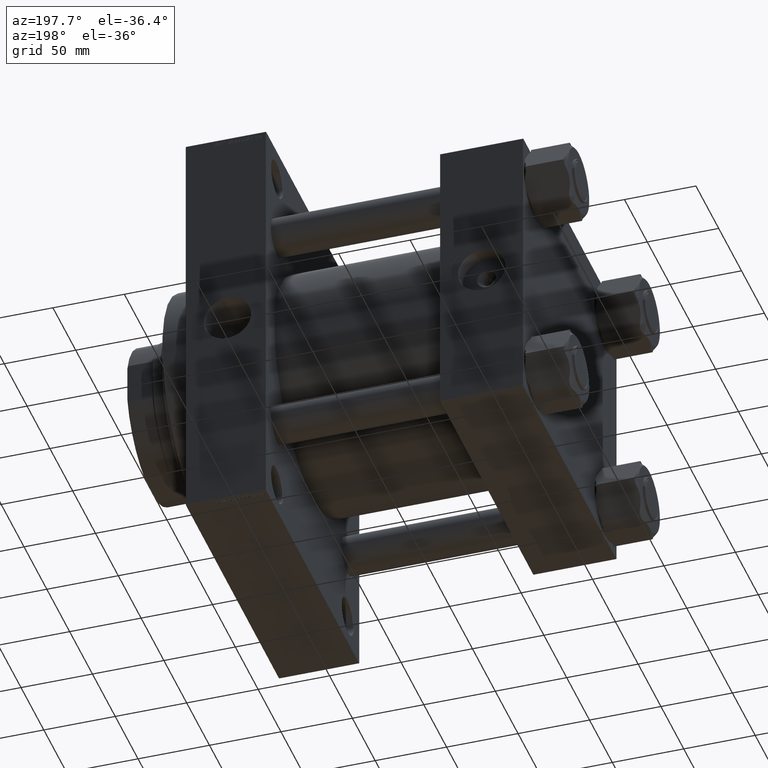
[diagram: clean part render]
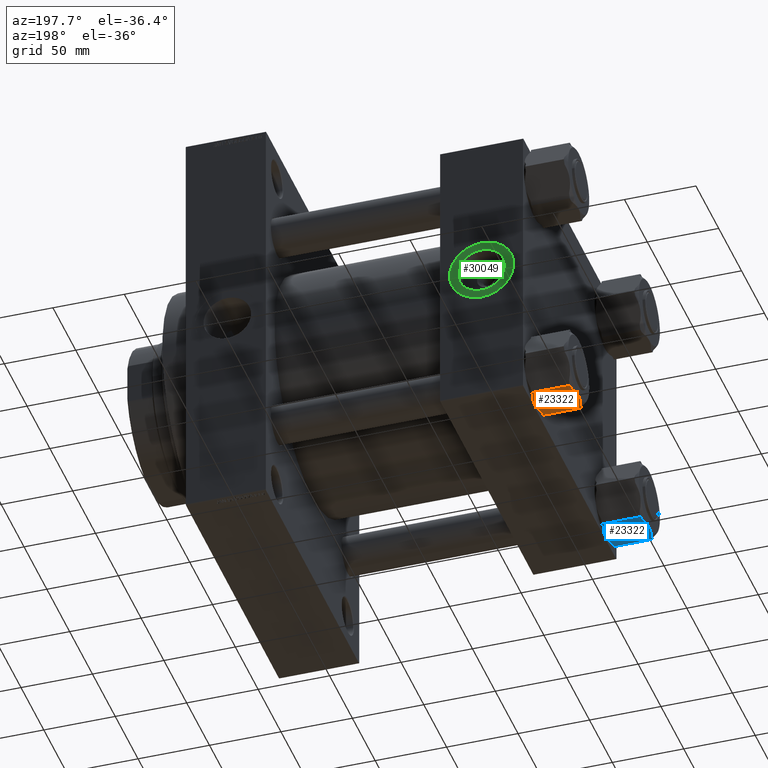
[diagram: same view with three faces highlighted in distinct colors, each labeled with its STEP entity id]
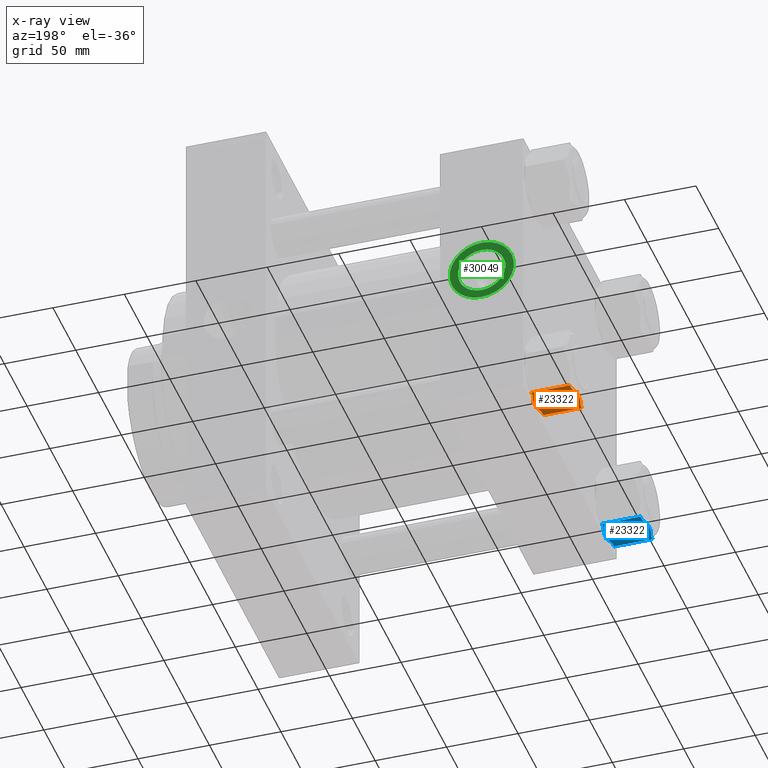
[diagram: x-ray of the same camera — body ghosted, the three highlighted faces saturated]
A machine part, auxiliary view with three faces highlighted in distinct colors.
The next image is the same camera in x-ray (body ghosted, the three faces saturated) — at least one of them is partly hidden behind the body in this view.
Their STEP definitions:

[orange] entity #23322 — the highlighted planar face has unit normal (0, 0, 1).
#771 = VECTOR ( 'NONE', #1139, 1000.000000000000000 ) ;
#896 = DIRECTION ( 'NONE',  ( -0.000000000000000000, -0.000000000000000000, 1.000000000000000000 ) ) ;
#1139 = DIRECTION ( 'NONE',  ( -1.000000000000000000, -1.303323422972807304E-16, 0.000000000000000000 ) ) ;
#1891 = EDGE_CURVE ( 'NONE', #43623, #46353, #31085, .T. ) ;
#2526 = CARTESIAN_POINT ( 'NONE',  ( 3.004629197474320035E-15, -23.05359624874177271, 0.000000000000000000 ) ) ;
#3108 = CARTESIAN_POINT ( 'NONE',  ( -0.4218342054646766481, -23.05359624874176561, -31.00000000000002132 ) ) ;
#3400 = CARTESIAN_POINT ( 'NONE',  ( 9.024432966208934204, -23.05359624874176205, -29.30712901002065962 ) ) ;
#3799 = CARTESIAN_POINT ( 'NONE',  ( -13.31000000000000405, -23.05359624874176205, -28.99999999999999645 ) ) ;
#4191 = CARTESIAN_POINT ( 'NONE',  ( 3.004629197474320035E-15, -23.05359624874177271, -31.00000000000000000 ) ) ;
#4194 = CARTESIAN_POINT ( 'NONE',  ( -13.31000000000000405, -23.05359624874176205, -2.000000000000001776 ) ) ;
#4224 = DIRECTION ( 'NONE',  ( -0.000000000000000000, -0.000000000000000000, 1.000000000000000000 ) ) ;
#4533 = ORIENTED_EDGE ( 'NONE', *, *, #46502, .T. ) ;
#5010 = VERTEX_POINT ( 'NONE', #5973 ) ;
#5324 = CARTESIAN_POINT ( 'NONE',  ( 13.31000000000000938, -23.05359624874175850, -28.99999999999999645 ) ) ;
#5973 = CARTESIAN_POINT ( 'NONE',  ( 9.808893158505085808, -23.05359624874176205, -2.000000000000000000 ) ) ;
#6615 = ORIENTED_EDGE ( 'NONE', *, *, #39692, .F. ) ;
#6637 = EDGE_CURVE ( 'NONE', #15421, #36551, #47461, .T. ) ;
#6645 = DIRECTION ( 'NONE',  ( 1.000000000000000000, 1.303323422972807304E-16, -0.000000000000000000 ) ) ;
#6682 = VERTEX_POINT ( 'NONE', #5324 ) ;
#6840 = ORIENTED_EDGE ( 'NONE', *, *, #25076, .F. ) ;
#7502 = CARTESIAN_POINT ( 'NONE',  ( 3.004629197474320035E-15, -23.05359624874177271, -31.00000000000000000 ) ) ;
#7843 = CARTESIAN_POINT ( 'NONE',  ( -13.31000000000000405, -23.05359624874176205, -31.00000000000000000 ) ) ;
#8148 = DIRECTION ( 'NONE',  ( -1.000000000000000000, -1.303323422972807304E-16, 0.000000000000000000 ) ) ;
#8737 = EDGE_LOOP ( 'NONE', ( #29335, #4533, #6615, #26264, #34849, #30559, #34949, #12476, #6840, #24176 ) ) ;
#9344 = VECTOR ( 'NONE', #4224, 1000.000000000000000 ) ;
#10238 = CARTESIAN_POINT ( 'NONE',  ( 0.4218342054646910810, -23.05359624874176205, 1.211341817868374915E-14 ) ) ;
#10480 = CARTESIAN_POINT ( 'NONE',  ( 4.192182187841031471, -23.05359624874176205, -0.3644771254818050532 ) ) ;
#11360 = CARTESIAN_POINT ( 'NONE',  ( 3.350210548520277332, -23.05359624874175495, -30.81266480856790935 ) ) ;
#11468 = LINE ( 'NONE', #7843, #9344 ) ;
#11770 = CARTESIAN_POINT ( 'NONE',  ( 13.31000000000000938, -23.05359624874175850, -31.00000000000000000 ) ) ;
#12476 = ORIENTED_EDGE ( 'NONE', *, *, #1891, .F. ) ;
#13184 = DIRECTION ( 'NONE',  ( 1.000000000000000000, 1.303323422972807304E-16, -0.000000000000000000 ) ) ;
#13202 = AXIS2_PLACEMENT_3D ( 'NONE', #11770, #26515, #8148 ) ;
#14447 = CARTESIAN_POINT ( 'NONE',  ( -6.641506094493685453, -23.05359624874176561, -30.11551404775777030 ) ) ;
#14675 = CARTESIAN_POINT ( 'NONE',  ( -3.366747807636256251, -23.05359624874176916, -30.77026726310296212 ) ) ;
#15421 = VERTEX_POINT ( 'NONE', #4194 ) ;
#16998 = CARTESIAN_POINT ( 'NONE',  ( 6.641506094493679235, -23.05359624874176205, -0.8844859522422295894 ) ) ;
#17354 = CARTESIAN_POINT ( 'NONE',  ( -9.024432966208918216, -23.05359624874176561, -1.692870989979335050 ) ) ;
#17715 = CARTESIAN_POINT ( 'NONE',  ( 3.366747807636262912, -23.05359624874175850, -0.2297327368970329131 ) ) ;
#17828 = CARTESIAN_POINT ( 'NONE',  ( -2.113373616412098865, -23.05359624874176561, -30.90705919660667078 ) ) ;
#18055 = CARTESIAN_POINT ( 'NONE',  ( 9.808893158505096466, -23.05359624874176205, -28.99999999999999645 ) ) ;
#18130 = CARTESIAN_POINT ( 'NONE',  ( 5.801497649255038525, -23.05359624874175850, -30.29464328683343410 ) ) ;
#18540 = CARTESIAN_POINT ( 'NONE',  ( -1.693046291327859887, -23.05359624874175495, -30.94177411052105953 ) ) ;
#18858 = B_SPLINE_CURVE_WITH_KNOTS ( 'NONE', 3,
 ( #25629, #3400, #47371, #36744, #18130, #11360, #33359, #7502 ),
 .UNSPECIFIED., .F., .F.,
 ( 4, 2, 2, 4 ),
 ( 0.03704433557245610797, 0.03955680769153650106, 0.04206927981061689414, 0.04709422404877768031 ),
 .UNSPECIFIED. ) ;
#18944 = CARTESIAN_POINT ( 'NONE',  ( 3.004629197474320035E-15, -23.05359624874177271, 0.000000000000000000 ) ) ;
#19950 = VERTEX_POINT ( 'NONE', #18944 ) ;
#19965 = VERTEX_POINT ( 'NONE', #21606 ) ;
#20199 = LINE ( 'NONE', #23129, #24483 ) ;
#20316 = CARTESIAN_POINT ( 'NONE',  ( -9.808893158505089360, -23.05359624874176205, -28.99999999999999645 ) ) ;
#21229 = CARTESIAN_POINT ( 'NONE',  ( -9.808893158505089360, -23.05359624874176205, -28.99999999999999645 ) ) ;
#21578 = CARTESIAN_POINT ( 'NONE',  ( 9.808893158505085808, -23.05359624874176205, -2.000000000000000000 ) ) ;
#21598 = CARTESIAN_POINT ( 'NONE',  ( 13.31000000000000938, -23.05359624874175850, -2.000000000000001776 ) ) ;
#21606 = CARTESIAN_POINT ( 'NONE',  ( 13.31000000000000938, -23.05359624874175850, -2.000000000000001776 ) ) ;
#21934 = CARTESIAN_POINT ( 'NONE',  ( -8.238500401260319350, -23.05359624874176205, -29.61483447804336322 ) ) ;
#23062 = EDGE_CURVE ( 'NONE', #46353, #15421, #11468, .T. ) ;
#23129 = CARTESIAN_POINT ( 'NONE',  ( 13.31000000000000938, -23.05359624874175850, -28.99999999999999645 ) ) ;
#23322 = ADVANCED_FACE ( 'NONE', ( #33995 ), #44868, .F. ) ;
#23595 = LINE ( 'NONE', #41713, #26099 ) ;
#23875 = EDGE_CURVE ( 'NONE', #36551, #19950, #32338, .T. ) ;
#24176 = ORIENTED_EDGE ( 'NONE', *, *, #38401, .F. ) ;
#24483 = VECTOR ( 'NONE', #37867, 1000.000000000000000 ) ;
#24980 = CARTESIAN_POINT ( 'NONE',  ( 1.693046291327868325, -23.05359624874175850, -0.05822588947892674838 ) ) ;
#25076 = EDGE_CURVE ( 'NONE', #35341, #43623, #40466, .T. ) ;
#25220 = CARTESIAN_POINT ( 'NONE',  ( 8.238500401260312245, -23.05359624874175495, -1.385165521956630785 ) ) ;
#25629 = CARTESIAN_POINT ( 'NONE',  ( 9.808893158505096466, -23.05359624874176205, -28.99999999999999645 ) ) ;
#25897 = VECTOR ( 'NONE', #13184, 1000.000000000000000 ) ;
#26099 = VECTOR ( 'NONE', #896, 1000.000000000000000 ) ;
#26264 = ORIENTED_EDGE ( 'NONE', *, *, #38998, .F. ) ;
#26515 = DIRECTION ( 'NONE',  ( -1.303323422972807304E-16, 1.000000000000000000, 0.000000000000000000 ) ) ;
#27538 = CARTESIAN_POINT ( 'NONE',  ( 3.004629197474320035E-15, -23.05359624874177271, 0.000000000000000000 ) ) ;
#28865 = CARTESIAN_POINT ( 'NONE',  ( 0.8470567002417638269, -23.05359624874175140, -0.01168982920648786727 ) ) ;
#29335 = ORIENTED_EDGE ( 'NONE', *, *, #44256, .F. ) ;
#30559 = ORIENTED_EDGE ( 'NONE', *, *, #6637, .F. ) ;
#31085 = LINE ( 'NONE', #34235, #771 ) ;
#31149 = CARTESIAN_POINT ( 'NONE',  ( -1.690332161126401278, -23.05359624874176205, 1.223793202193012972E-14 ) ) ;
#31182 = CARTESIAN_POINT ( 'NONE',  ( -9.808893158505080478, -23.05359624874176205, -2.000000000000000000 ) ) ;
#31804 = CARTESIAN_POINT ( 'NONE',  ( 13.31000000000000938, -23.05359624874175850, -2.000000000000001776 ) ) ;
#32338 = B_SPLINE_CURVE_WITH_KNOTS ( 'NONE', 3,
 ( #38406, #17354, #45875, #46122, #45631, #38878, #31149, #27538 ),
 .UNSPECIFIED., .F., .F.,
 ( 4, 2, 2, 4 ),
 ( 0.03704433557245612185, 0.03955680769153651494, 0.04206927981061690802, 0.04709422404877768725 ),
 .UNSPECIFIED. ) ;
#33060 = CARTESIAN_POINT ( 'NONE',  ( -4.192182187841029695, -23.05359624874176561, -30.63552287451819822 ) ) ;
#33359 = CARTESIAN_POINT ( 'NONE',  ( 1.690332161126417709, -23.05359624874175495, -31.00000000000001421 ) ) ;
#33995 = FACE_OUTER_BOUND ( 'NONE', #8737, .T. ) ;
#34235 = CARTESIAN_POINT ( 'NONE',  ( 13.31000000000000938, -23.05359624874175850, -28.99999999999999645 ) ) ;
#34849 = ORIENTED_EDGE ( 'NONE', *, *, #23875, .F. ) ;
#34949 = ORIENTED_EDGE ( 'NONE', *, *, #23062, .F. ) ;
#35341 = VERTEX_POINT ( 'NONE', #4191 ) ;
#35979 = CARTESIAN_POINT ( 'NONE',  ( 3.004629197474320035E-15, -23.05359624874177271, -31.00000000000000000 ) ) ;
#36331 = CARTESIAN_POINT ( 'NONE',  ( 2.113373616412109968, -23.05359624874176205, -0.09294080339332899676 ) ) ;
#36551 = VERTEX_POINT ( 'NONE', #31182 ) ;
#36744 = CARTESIAN_POINT ( 'NONE',  ( 6.612214801278809340, -23.05359624874175140, -30.08273205772793091 ) ) ;
#37867 = DIRECTION ( 'NONE',  ( -1.000000000000000000, -1.303323422972807304E-16, 0.000000000000000000 ) ) ;
#38401 = EDGE_CURVE ( 'NONE', #46343, #35341, #18858, .T. ) ;
#38406 = CARTESIAN_POINT ( 'NONE',  ( -9.808893158505080478, -23.05359624874176205, -2.000000000000000000 ) ) ;
#38878 = CARTESIAN_POINT ( 'NONE',  ( -3.350210548520257792, -23.05359624874175850, -0.1873351914320835754 ) ) ;
#38998 = EDGE_CURVE ( 'NONE', #19950, #5010, #43599, .T. ) ;
#39503 = VECTOR ( 'NONE', #6645, 1000.000000000000000 ) ;
#39692 = EDGE_CURVE ( 'NONE', #5010, #19965, #47250, .T. ) ;
#40466 = B_SPLINE_CURVE_WITH_KNOTS ( 'NONE', 3,
 ( #35979, #3108, #47554, #18540, #17828, #14675, #33060, #14447, #21934, #21229 ),
 .UNSPECIFIED., .F., .F.,
 ( 4, 2, 2, 2, 4 ),
 ( 0.04709422404877768031, 0.04834823400549316530, 0.04960224396220865029, 0.05211026387563962026, 0.05712630370250156020 ),
 .UNSPECIFIED. ) ;
#41713 = CARTESIAN_POINT ( 'NONE',  ( 13.31000000000000938, -23.05359624874175850, -31.00000000000000000 ) ) ;
#43599 = B_SPLINE_CURVE_WITH_KNOTS ( 'NONE', 3,
 ( #2526, #10238, #28865, #24980, #36331, #17715, #10480, #16998, #25220, #21578 ),
 .UNSPECIFIED., .F., .F.,
 ( 4, 2, 2, 2, 4 ),
 ( 0.04709422404877768725, 0.04834823400549317224, 0.04960224396220865029, 0.05211026387563961332, 0.05712630370250153244 ),
 .UNSPECIFIED. ) ;
#43623 = VERTEX_POINT ( 'NONE', #20316 ) ;
#44256 = EDGE_CURVE ( 'NONE', #6682, #46343, #20199, .T. ) ;
#44868 = PLANE ( 'NONE',  #13202 ) ;
#45631 = CARTESIAN_POINT ( 'NONE',  ( -5.801497649255014544, -23.05359624874176205, -0.7053567131665616774 ) ) ;
#45875 = CARTESIAN_POINT ( 'NONE',  ( -8.222377524857041209, -23.05359624874176205, -1.410427084452070101 ) ) ;
#46122 = CARTESIAN_POINT ( 'NONE',  ( -6.612214801278793352, -23.05359624874175495, -0.9172679422720545483 ) ) ;
#46343 = VERTEX_POINT ( 'NONE', #18055 ) ;
#46353 = VERTEX_POINT ( 'NONE', #3799 ) ;
#46502 = EDGE_CURVE ( 'NONE', #6682, #19965, #23595, .T. ) ;
#47250 = LINE ( 'NONE', #31804, #25897 ) ;
#47371 = CARTESIAN_POINT ( 'NONE',  ( 8.222377524857060749, -23.05359624874175495, -29.58957291554792590 ) ) ;
#47461 = LINE ( 'NONE', #21598, #39503 ) ;
#47554 = CARTESIAN_POINT ( 'NONE',  ( -0.8470567002417531688, -23.05359624874176205, -30.98831017079351113 ) ) ;

[blue] entity #23322 — the highlighted planar face has unit normal (0, 0, 1).
#771 = VECTOR ( 'NONE', #1139, 1000.000000000000000 ) ;
#896 = DIRECTION ( 'NONE',  ( -0.000000000000000000, -0.000000000000000000, 1.000000000000000000 ) ) ;
#1139 = DIRECTION ( 'NONE',  ( -1.000000000000000000, -1.303323422972807304E-16, 0.000000000000000000 ) ) ;
#1891 = EDGE_CURVE ( 'NONE', #43623, #46353, #31085, .T. ) ;
#2526 = CARTESIAN_POINT ( 'NONE',  ( 3.004629197474320035E-15, -23.05359624874177271, 0.000000000000000000 ) ) ;
#3108 = CARTESIAN_POINT ( 'NONE',  ( -0.4218342054646766481, -23.05359624874176561, -31.00000000000002132 ) ) ;
#3400 = CARTESIAN_POINT ( 'NONE',  ( 9.024432966208934204, -23.05359624874176205, -29.30712901002065962 ) ) ;
#3799 = CARTESIAN_POINT ( 'NONE',  ( -13.31000000000000405, -23.05359624874176205, -28.99999999999999645 ) ) ;
#4191 = CARTESIAN_POINT ( 'NONE',  ( 3.004629197474320035E-15, -23.05359624874177271, -31.00000000000000000 ) ) ;
#4194 = CARTESIAN_POINT ( 'NONE',  ( -13.31000000000000405, -23.05359624874176205, -2.000000000000001776 ) ) ;
#4224 = DIRECTION ( 'NONE',  ( -0.000000000000000000, -0.000000000000000000, 1.000000000000000000 ) ) ;
#4533 = ORIENTED_EDGE ( 'NONE', *, *, #46502, .T. ) ;
#5010 = VERTEX_POINT ( 'NONE', #5973 ) ;
#5324 = CARTESIAN_POINT ( 'NONE',  ( 13.31000000000000938, -23.05359624874175850, -28.99999999999999645 ) ) ;
#5973 = CARTESIAN_POINT ( 'NONE',  ( 9.808893158505085808, -23.05359624874176205, -2.000000000000000000 ) ) ;
#6615 = ORIENTED_EDGE ( 'NONE', *, *, #39692, .F. ) ;
#6637 = EDGE_CURVE ( 'NONE', #15421, #36551, #47461, .T. ) ;
#6645 = DIRECTION ( 'NONE',  ( 1.000000000000000000, 1.303323422972807304E-16, -0.000000000000000000 ) ) ;
#6682 = VERTEX_POINT ( 'NONE', #5324 ) ;
#6840 = ORIENTED_EDGE ( 'NONE', *, *, #25076, .F. ) ;
#7502 = CARTESIAN_POINT ( 'NONE',  ( 3.004629197474320035E-15, -23.05359624874177271, -31.00000000000000000 ) ) ;
#7843 = CARTESIAN_POINT ( 'NONE',  ( -13.31000000000000405, -23.05359624874176205, -31.00000000000000000 ) ) ;
#8148 = DIRECTION ( 'NONE',  ( -1.000000000000000000, -1.303323422972807304E-16, 0.000000000000000000 ) ) ;
#8737 = EDGE_LOOP ( 'NONE', ( #29335, #4533, #6615, #26264, #34849, #30559, #34949, #12476, #6840, #24176 ) ) ;
#9344 = VECTOR ( 'NONE', #4224, 1000.000000000000000 ) ;
#10238 = CARTESIAN_POINT ( 'NONE',  ( 0.4218342054646910810, -23.05359624874176205, 1.211341817868374915E-14 ) ) ;
#10480 = CARTESIAN_POINT ( 'NONE',  ( 4.192182187841031471, -23.05359624874176205, -0.3644771254818050532 ) ) ;
#11360 = CARTESIAN_POINT ( 'NONE',  ( 3.350210548520277332, -23.05359624874175495, -30.81266480856790935 ) ) ;
#11468 = LINE ( 'NONE', #7843, #9344 ) ;
#11770 = CARTESIAN_POINT ( 'NONE',  ( 13.31000000000000938, -23.05359624874175850, -31.00000000000000000 ) ) ;
#12476 = ORIENTED_EDGE ( 'NONE', *, *, #1891, .F. ) ;
#13184 = DIRECTION ( 'NONE',  ( 1.000000000000000000, 1.303323422972807304E-16, -0.000000000000000000 ) ) ;
#13202 = AXIS2_PLACEMENT_3D ( 'NONE', #11770, #26515, #8148 ) ;
#14447 = CARTESIAN_POINT ( 'NONE',  ( -6.641506094493685453, -23.05359624874176561, -30.11551404775777030 ) ) ;
#14675 = CARTESIAN_POINT ( 'NONE',  ( -3.366747807636256251, -23.05359624874176916, -30.77026726310296212 ) ) ;
#15421 = VERTEX_POINT ( 'NONE', #4194 ) ;
#16998 = CARTESIAN_POINT ( 'NONE',  ( 6.641506094493679235, -23.05359624874176205, -0.8844859522422295894 ) ) ;
#17354 = CARTESIAN_POINT ( 'NONE',  ( -9.024432966208918216, -23.05359624874176561, -1.692870989979335050 ) ) ;
#17715 = CARTESIAN_POINT ( 'NONE',  ( 3.366747807636262912, -23.05359624874175850, -0.2297327368970329131 ) ) ;
#17828 = CARTESIAN_POINT ( 'NONE',  ( -2.113373616412098865, -23.05359624874176561, -30.90705919660667078 ) ) ;
#18055 = CARTESIAN_POINT ( 'NONE',  ( 9.808893158505096466, -23.05359624874176205, -28.99999999999999645 ) ) ;
#18130 = CARTESIAN_POINT ( 'NONE',  ( 5.801497649255038525, -23.05359624874175850, -30.29464328683343410 ) ) ;
#18540 = CARTESIAN_POINT ( 'NONE',  ( -1.693046291327859887, -23.05359624874175495, -30.94177411052105953 ) ) ;
#18858 = B_SPLINE_CURVE_WITH_KNOTS ( 'NONE', 3,
 ( #25629, #3400, #47371, #36744, #18130, #11360, #33359, #7502 ),
 .UNSPECIFIED., .F., .F.,
 ( 4, 2, 2, 4 ),
 ( 0.03704433557245610797, 0.03955680769153650106, 0.04206927981061689414, 0.04709422404877768031 ),
 .UNSPECIFIED. ) ;
#18944 = CARTESIAN_POINT ( 'NONE',  ( 3.004629197474320035E-15, -23.05359624874177271, 0.000000000000000000 ) ) ;
#19950 = VERTEX_POINT ( 'NONE', #18944 ) ;
#19965 = VERTEX_POINT ( 'NONE', #21606 ) ;
#20199 = LINE ( 'NONE', #23129, #24483 ) ;
#20316 = CARTESIAN_POINT ( 'NONE',  ( -9.808893158505089360, -23.05359624874176205, -28.99999999999999645 ) ) ;
#21229 = CARTESIAN_POINT ( 'NONE',  ( -9.808893158505089360, -23.05359624874176205, -28.99999999999999645 ) ) ;
#21578 = CARTESIAN_POINT ( 'NONE',  ( 9.808893158505085808, -23.05359624874176205, -2.000000000000000000 ) ) ;
#21598 = CARTESIAN_POINT ( 'NONE',  ( 13.31000000000000938, -23.05359624874175850, -2.000000000000001776 ) ) ;
#21606 = CARTESIAN_POINT ( 'NONE',  ( 13.31000000000000938, -23.05359624874175850, -2.000000000000001776 ) ) ;
#21934 = CARTESIAN_POINT ( 'NONE',  ( -8.238500401260319350, -23.05359624874176205, -29.61483447804336322 ) ) ;
#23062 = EDGE_CURVE ( 'NONE', #46353, #15421, #11468, .T. ) ;
#23129 = CARTESIAN_POINT ( 'NONE',  ( 13.31000000000000938, -23.05359624874175850, -28.99999999999999645 ) ) ;
#23322 = ADVANCED_FACE ( 'NONE', ( #33995 ), #44868, .F. ) ;
#23595 = LINE ( 'NONE', #41713, #26099 ) ;
#23875 = EDGE_CURVE ( 'NONE', #36551, #19950, #32338, .T. ) ;
#24176 = ORIENTED_EDGE ( 'NONE', *, *, #38401, .F. ) ;
#24483 = VECTOR ( 'NONE', #37867, 1000.000000000000000 ) ;
#24980 = CARTESIAN_POINT ( 'NONE',  ( 1.693046291327868325, -23.05359624874175850, -0.05822588947892674838 ) ) ;
#25076 = EDGE_CURVE ( 'NONE', #35341, #43623, #40466, .T. ) ;
#25220 = CARTESIAN_POINT ( 'NONE',  ( 8.238500401260312245, -23.05359624874175495, -1.385165521956630785 ) ) ;
#25629 = CARTESIAN_POINT ( 'NONE',  ( 9.808893158505096466, -23.05359624874176205, -28.99999999999999645 ) ) ;
#25897 = VECTOR ( 'NONE', #13184, 1000.000000000000000 ) ;
#26099 = VECTOR ( 'NONE', #896, 1000.000000000000000 ) ;
#26264 = ORIENTED_EDGE ( 'NONE', *, *, #38998, .F. ) ;
#26515 = DIRECTION ( 'NONE',  ( -1.303323422972807304E-16, 1.000000000000000000, 0.000000000000000000 ) ) ;
#27538 = CARTESIAN_POINT ( 'NONE',  ( 3.004629197474320035E-15, -23.05359624874177271, 0.000000000000000000 ) ) ;
#28865 = CARTESIAN_POINT ( 'NONE',  ( 0.8470567002417638269, -23.05359624874175140, -0.01168982920648786727 ) ) ;
#29335 = ORIENTED_EDGE ( 'NONE', *, *, #44256, .F. ) ;
#30559 = ORIENTED_EDGE ( 'NONE', *, *, #6637, .F. ) ;
#31085 = LINE ( 'NONE', #34235, #771 ) ;
#31149 = CARTESIAN_POINT ( 'NONE',  ( -1.690332161126401278, -23.05359624874176205, 1.223793202193012972E-14 ) ) ;
#31182 = CARTESIAN_POINT ( 'NONE',  ( -9.808893158505080478, -23.05359624874176205, -2.000000000000000000 ) ) ;
#31804 = CARTESIAN_POINT ( 'NONE',  ( 13.31000000000000938, -23.05359624874175850, -2.000000000000001776 ) ) ;
#32338 = B_SPLINE_CURVE_WITH_KNOTS ( 'NONE', 3,
 ( #38406, #17354, #45875, #46122, #45631, #38878, #31149, #27538 ),
 .UNSPECIFIED., .F., .F.,
 ( 4, 2, 2, 4 ),
 ( 0.03704433557245612185, 0.03955680769153651494, 0.04206927981061690802, 0.04709422404877768725 ),
 .UNSPECIFIED. ) ;
#33060 = CARTESIAN_POINT ( 'NONE',  ( -4.192182187841029695, -23.05359624874176561, -30.63552287451819822 ) ) ;
#33359 = CARTESIAN_POINT ( 'NONE',  ( 1.690332161126417709, -23.05359624874175495, -31.00000000000001421 ) ) ;
#33995 = FACE_OUTER_BOUND ( 'NONE', #8737, .T. ) ;
#34235 = CARTESIAN_POINT ( 'NONE',  ( 13.31000000000000938, -23.05359624874175850, -28.99999999999999645 ) ) ;
#34849 = ORIENTED_EDGE ( 'NONE', *, *, #23875, .F. ) ;
#34949 = ORIENTED_EDGE ( 'NONE', *, *, #23062, .F. ) ;
#35341 = VERTEX_POINT ( 'NONE', #4191 ) ;
#35979 = CARTESIAN_POINT ( 'NONE',  ( 3.004629197474320035E-15, -23.05359624874177271, -31.00000000000000000 ) ) ;
#36331 = CARTESIAN_POINT ( 'NONE',  ( 2.113373616412109968, -23.05359624874176205, -0.09294080339332899676 ) ) ;
#36551 = VERTEX_POINT ( 'NONE', #31182 ) ;
#36744 = CARTESIAN_POINT ( 'NONE',  ( 6.612214801278809340, -23.05359624874175140, -30.08273205772793091 ) ) ;
#37867 = DIRECTION ( 'NONE',  ( -1.000000000000000000, -1.303323422972807304E-16, 0.000000000000000000 ) ) ;
#38401 = EDGE_CURVE ( 'NONE', #46343, #35341, #18858, .T. ) ;
#38406 = CARTESIAN_POINT ( 'NONE',  ( -9.808893158505080478, -23.05359624874176205, -2.000000000000000000 ) ) ;
#38878 = CARTESIAN_POINT ( 'NONE',  ( -3.350210548520257792, -23.05359624874175850, -0.1873351914320835754 ) ) ;
#38998 = EDGE_CURVE ( 'NONE', #19950, #5010, #43599, .T. ) ;
#39503 = VECTOR ( 'NONE', #6645, 1000.000000000000000 ) ;
#39692 = EDGE_CURVE ( 'NONE', #5010, #19965, #47250, .T. ) ;
#40466 = B_SPLINE_CURVE_WITH_KNOTS ( 'NONE', 3,
 ( #35979, #3108, #47554, #18540, #17828, #14675, #33060, #14447, #21934, #21229 ),
 .UNSPECIFIED., .F., .F.,
 ( 4, 2, 2, 2, 4 ),
 ( 0.04709422404877768031, 0.04834823400549316530, 0.04960224396220865029, 0.05211026387563962026, 0.05712630370250156020 ),
 .UNSPECIFIED. ) ;
#41713 = CARTESIAN_POINT ( 'NONE',  ( 13.31000000000000938, -23.05359624874175850, -31.00000000000000000 ) ) ;
#43599 = B_SPLINE_CURVE_WITH_KNOTS ( 'NONE', 3,
 ( #2526, #10238, #28865, #24980, #36331, #17715, #10480, #16998, #25220, #21578 ),
 .UNSPECIFIED., .F., .F.,
 ( 4, 2, 2, 2, 4 ),
 ( 0.04709422404877768725, 0.04834823400549317224, 0.04960224396220865029, 0.05211026387563961332, 0.05712630370250153244 ),
 .UNSPECIFIED. ) ;
#43623 = VERTEX_POINT ( 'NONE', #20316 ) ;
#44256 = EDGE_CURVE ( 'NONE', #6682, #46343, #20199, .T. ) ;
#44868 = PLANE ( 'NONE',  #13202 ) ;
#45631 = CARTESIAN_POINT ( 'NONE',  ( -5.801497649255014544, -23.05359624874176205, -0.7053567131665616774 ) ) ;
#45875 = CARTESIAN_POINT ( 'NONE',  ( -8.222377524857041209, -23.05359624874176205, -1.410427084452070101 ) ) ;
#46122 = CARTESIAN_POINT ( 'NONE',  ( -6.612214801278793352, -23.05359624874175495, -0.9172679422720545483 ) ) ;
#46343 = VERTEX_POINT ( 'NONE', #18055 ) ;
#46353 = VERTEX_POINT ( 'NONE', #3799 ) ;
#46502 = EDGE_CURVE ( 'NONE', #6682, #19965, #23595, .T. ) ;
#47250 = LINE ( 'NONE', #31804, #25897 ) ;
#47371 = CARTESIAN_POINT ( 'NONE',  ( 8.222377524857060749, -23.05359624874175495, -29.58957291554792590 ) ) ;
#47461 = LINE ( 'NONE', #21598, #39503 ) ;
#47554 = CARTESIAN_POINT ( 'NONE',  ( -0.8470567002417531688, -23.05359624874176205, -30.98831017079351113 ) ) ;

[green] entity #30049 — the highlighted planar face has unit normal (0, 1, 0).
#824 = DIRECTION ( 'NONE',  ( 0.000000000000000000, 1.000000000000000000, 0.000000000000000000 ) ) ;
#1255 = DIRECTION ( 'NONE',  ( 0.000000000000000000, 1.000000000000000000, 0.000000000000000000 ) ) ;
#1488 = CARTESIAN_POINT ( 'NONE',  ( 29.00000000000000000, 102.3000000000000114, 0.000000000000000000 ) ) ;
#3608 = AXIS2_PLACEMENT_3D ( 'NONE', #1488, #1255, #31206 ) ;
#4002 = PLANE ( 'NONE',  #14094 ) ;
#4109 = VERTEX_POINT ( 'NONE', #43348 ) ;
#4403 = CIRCLE ( 'NONE', #3608, 16.62000000000000099 ) ;
#4684 = DIRECTION ( 'NONE',  ( 0.000000000000000000, 0.000000000000000000, 1.000000000000000000 ) ) ;
#6741 = DIRECTION ( 'NONE',  ( 0.000000000000000000, 0.000000000000000000, 1.000000000000000000 ) ) ;
#7910 = CARTESIAN_POINT ( 'NONE',  ( 29.00000000000000000, 102.3000000000000114, 22.50000000000000711 ) ) ;
#9980 = VERTEX_POINT ( 'NONE', #36371 ) ;
#10643 = EDGE_LOOP ( 'NONE', ( #22849, #39325 ) ) ;
#11488 = FACE_OUTER_BOUND ( 'NONE', #10643, .T. ) ;
#11639 = EDGE_CURVE ( 'NONE', #28384, #37564, #30300, .T. ) ;
#13035 = CARTESIAN_POINT ( 'NONE',  ( 29.00000000000000000, 102.3000000000000114, 0.000000000000000000 ) ) ;
#14094 = AXIS2_PLACEMENT_3D ( 'NONE', #18732, #18978, #33731 ) ;
#15790 = EDGE_CURVE ( 'NONE', #37564, #28384, #45860, .T. ) ;
#16361 = AXIS2_PLACEMENT_3D ( 'NONE', #29692, #25100, #6741 ) ;
#18732 = CARTESIAN_POINT ( 'NONE',  ( 29.00000000000000000, 102.3000000000000114, 0.000000000000000000 ) ) ;
#18978 = DIRECTION ( 'NONE',  ( 0.000000000000000000, 1.000000000000000000, 0.000000000000000000 ) ) ;
#19878 = CARTESIAN_POINT ( 'NONE',  ( 29.00000000000000000, 102.3000000000000114, 0.000000000000000000 ) ) ;
#22601 = FACE_BOUND ( 'NONE', #32636, .T. ) ;
#22723 = CIRCLE ( 'NONE', #41247, 16.62000000000000099 ) ;
#22849 = ORIENTED_EDGE ( 'NONE', *, *, #15790, .T. ) ;
#25100 = DIRECTION ( 'NONE',  ( 0.000000000000000000, 1.000000000000000000, 0.000000000000000000 ) ) ;
#26857 = CARTESIAN_POINT ( 'NONE',  ( 29.00000000000000355, 102.3000000000000114, -22.50000000000000711 ) ) ;
#27348 = ORIENTED_EDGE ( 'NONE', *, *, #43558, .F. ) ;
#28384 = VERTEX_POINT ( 'NONE', #26857 ) ;
#29692 = CARTESIAN_POINT ( 'NONE',  ( 29.00000000000000000, 102.3000000000000114, 0.000000000000000000 ) ) ;
#30030 = ORIENTED_EDGE ( 'NONE', *, *, #33871, .F. ) ;
#30049 = ADVANCED_FACE ( 'NONE', ( #22601, #11488 ), #4002, .T. ) ;
#30300 = CIRCLE ( 'NONE', #16361, 22.50000000000000711 ) ;
#30439 = AXIS2_PLACEMENT_3D ( 'NONE', #13035, #42044, #46145 ) ;
#31206 = DIRECTION ( 'NONE',  ( 0.000000000000000000, 0.000000000000000000, 1.000000000000000000 ) ) ;
#32636 = EDGE_LOOP ( 'NONE', ( #27348, #30030 ) ) ;
#33731 = DIRECTION ( 'NONE',  ( 0.000000000000000000, -0.000000000000000000, 1.000000000000000000 ) ) ;
#33871 = EDGE_CURVE ( 'NONE', #4109, #9980, #22723, .T. ) ;
#36371 = CARTESIAN_POINT ( 'NONE',  ( 29.00000000000000000, 102.3000000000000114, 16.62000000000000099 ) ) ;
#37564 = VERTEX_POINT ( 'NONE', #7910 ) ;
#39325 = ORIENTED_EDGE ( 'NONE', *, *, #11639, .T. ) ;
#41247 = AXIS2_PLACEMENT_3D ( 'NONE', #19878, #824, #4684 ) ;
#42044 = DIRECTION ( 'NONE',  ( 0.000000000000000000, 1.000000000000000000, 0.000000000000000000 ) ) ;
#43348 = CARTESIAN_POINT ( 'NONE',  ( 29.00000000000000355, 102.3000000000000114, -16.62000000000000099 ) ) ;
#43558 = EDGE_CURVE ( 'NONE', #9980, #4109, #4403, .T. ) ;
#45860 = CIRCLE ( 'NONE', #30439, 22.50000000000000711 ) ;
#46145 = DIRECTION ( 'NONE',  ( 0.000000000000000000, 0.000000000000000000, 1.000000000000000000 ) ) ;